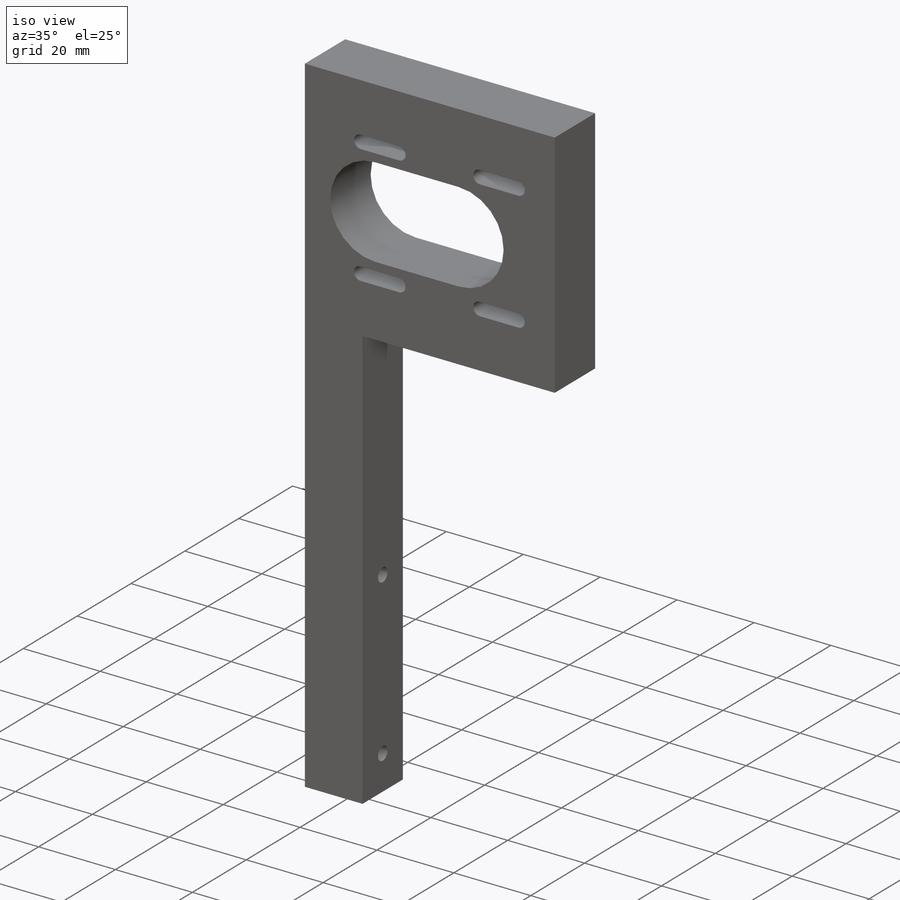
[diagram: iso view]
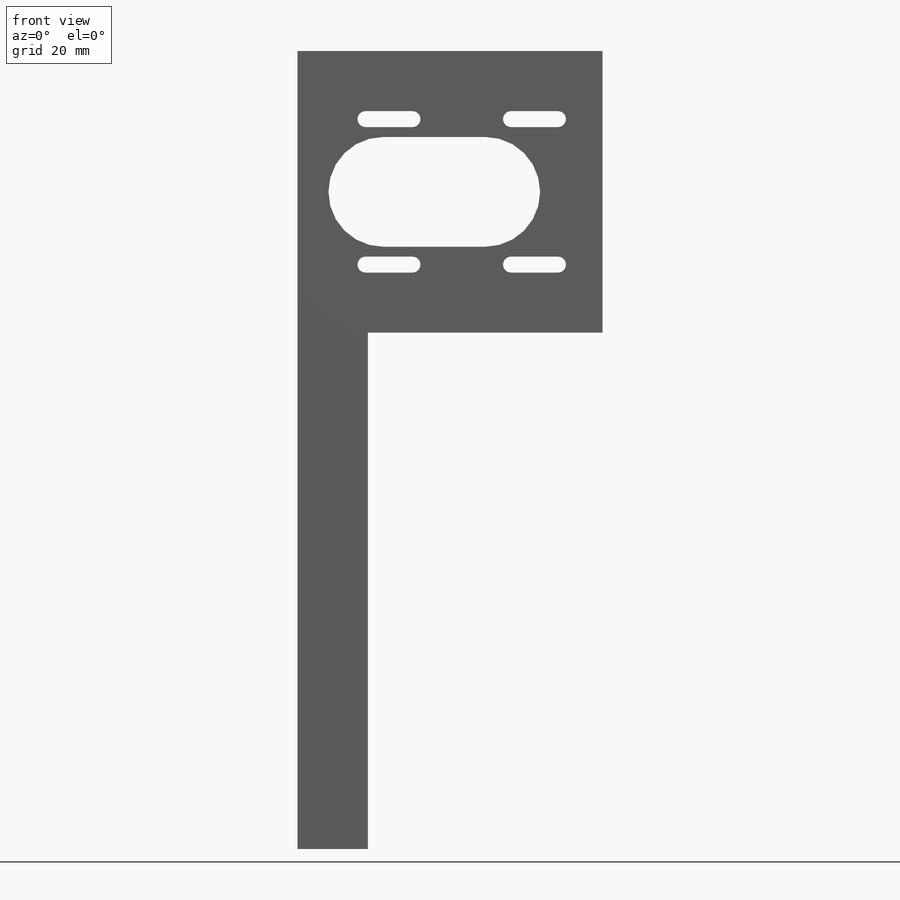
[diagram: front view]
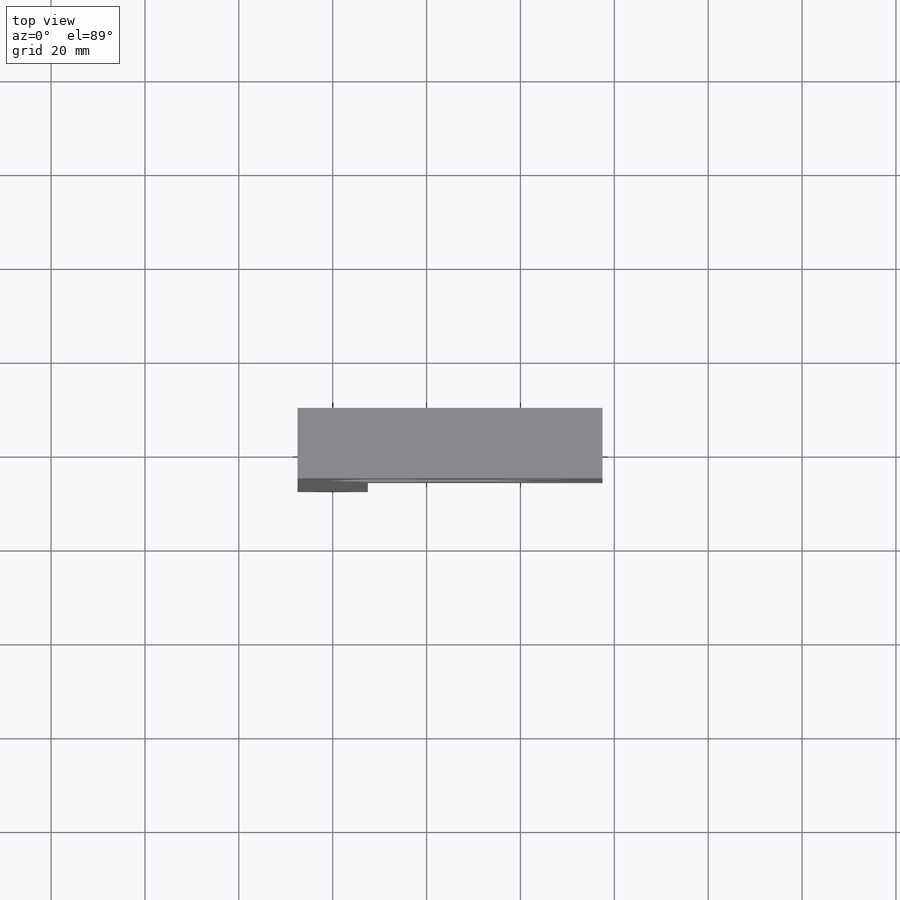
[diagram: top view]
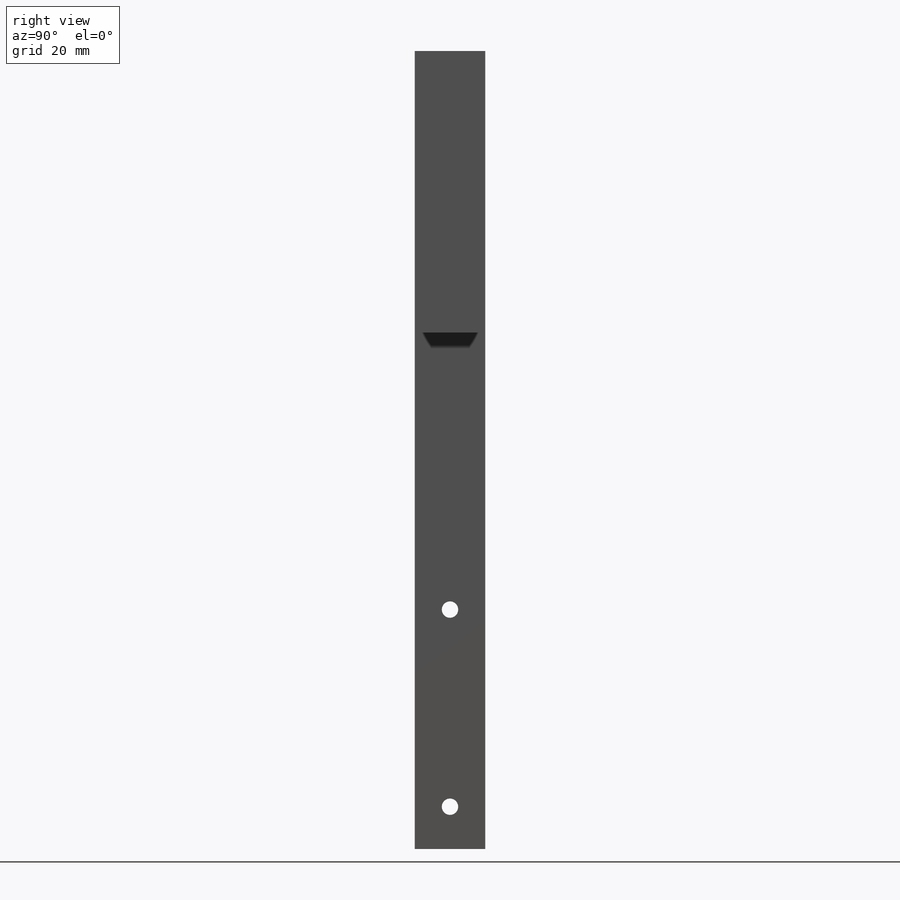
[diagram: right view]
SOLIDWORKS PART (.sldprt)
format: sldprt  version: not decoded by parser v0  size: 281,088 bytes
history: native  units: mm
features: sketch x7, cut_extrude x4, extrude x3, material x1 (+13 scaffold rows collapsed)
feature tree (28):
  scaffold x13  (default folders/planes/origin — collapsed)
  material  "Material <not specified>"
  sketch  "Sketch1"  dims[D1=15.0mm D2=15.0mm]
  extrude  "Boss-Extrude1"  Depth=170mm
  sketch  "Sketch2"  dims[c1.D1=4.0mm c1.D2=4.0mm c1.D3=2.1mm c2.D1=9.0mm c2.D2=42.0mm]
  cut_extrude  "Cut-Extrude1"  [1 undecoded]
  sketch  "Sketch8"  dims[D1=60.0mm]
  extrude  "Boss-Extrude2"  Depth=50mm
  sketch  "Sketch9"  dims[D1=22.0mm D2=9.0mm]
  cut_extrude  "Cut-Extrude2"  Depth=31mm
  sketch  "Sketch11"  dims[c1.D1=5.0mm c1.D2=5.0mm c1.D3=4.2mm c2.D1=9.0mm c2.D2=42.0mm]
  cut_extrude  "Cut-Extrude3"  Depth=10mm
  sketch  "Sketch12"
  extrude  "Boss-Extrude3"  Depth=31mm
  sketch  "Sketch13"  dims[c1.D1=24.0mm c1.D2=24.0mm c1.D3=~10.669884mm c2.D1=~0.798874mm c2.D2=11.7mm c2.D8=0.85mm c3.D1=30.0mm c3.D2=25.0mm c3.D3=21.7mm c4.D1=15.5mm c4.D2=25.0mm c4.D3=15.5mm c4.D4=15.5mm c4.D5=15.5mm c4.D6=15.5mm c4.D7=15.5mm c4.D8=10.0mm]
  cut_extrude  "Cut-Extrude4"  [1 undecoded]
decode coverage: 11 of 14 modeling features carry decoded parameters
note: ~ marks probable driven/reference dimensions
note: 2 parameter values undecoded
note: suppression state not decoded; provenance and decode notes live in map.json
